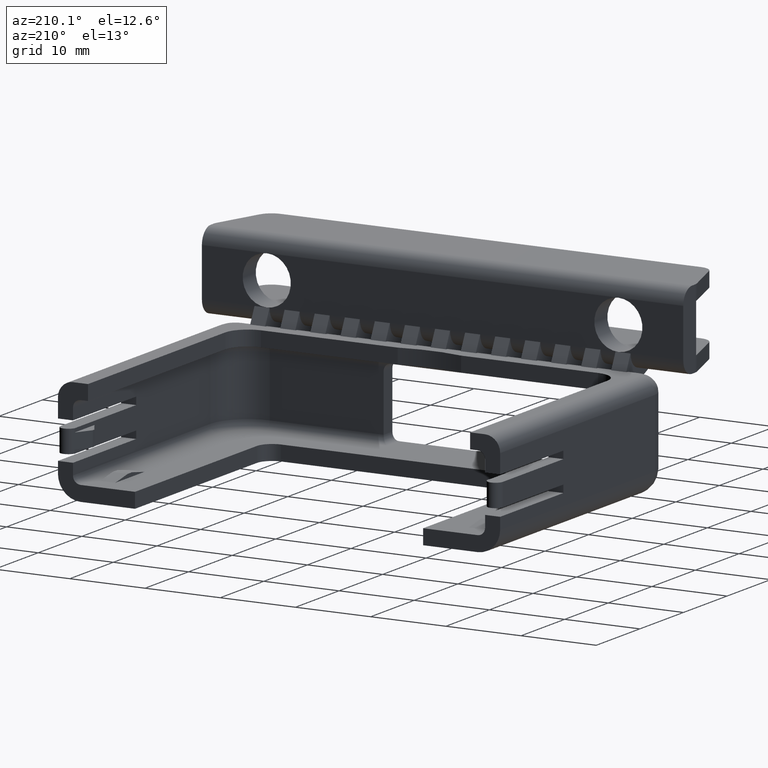
[diagram: clean part render]
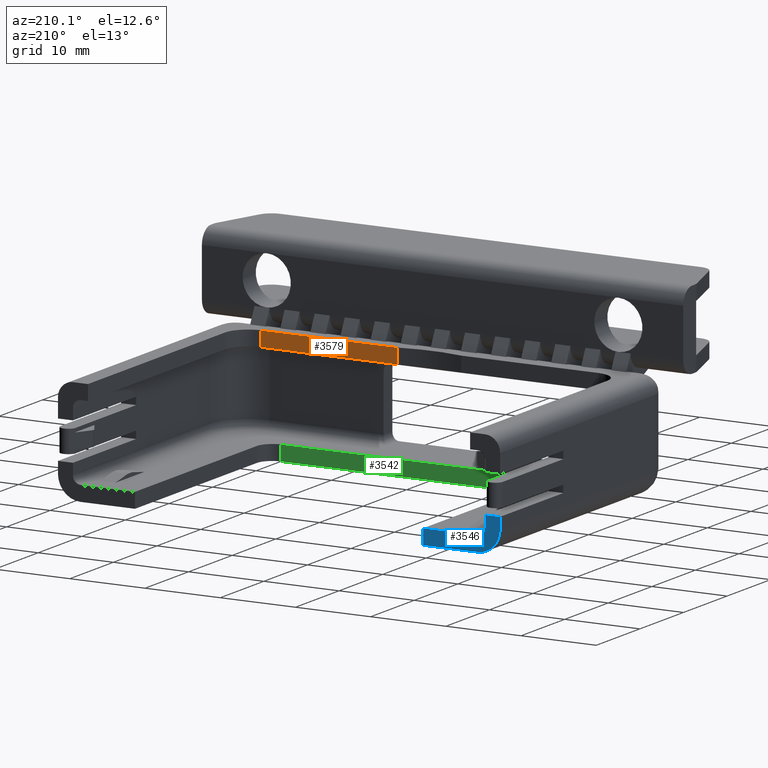
[diagram: same view with three faces highlighted in distinct colors, each labeled with its STEP entity id]
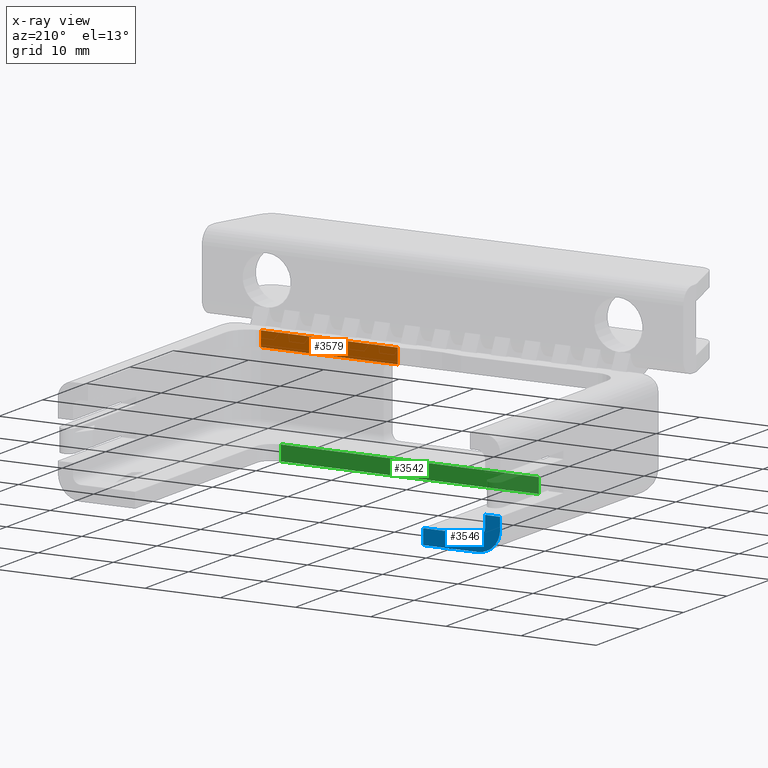
[diagram: x-ray of the same camera — body ghosted, the three highlighted faces saturated]
A machine part, auxiliary view with three faces highlighted in distinct colors.
The next image is the same camera in x-ray (body ghosted, the three faces saturated) — at least one of them is partly hidden behind the body in this view.
Their STEP definitions:

[orange] entity #3579 — the highlighted planar face has unit normal (0, 1, 0).
#679=VERTEX_POINT('',#4945);
#680=VERTEX_POINT('',#4947);
#762=VERTEX_POINT('',#5542);
#766=VERTEX_POINT('',#5555);
#1003=VECTOR('',#4104,1.);
#1078=VECTOR('',#4310,1.);
#1080=VECTOR('',#4315,1.);
#1086=VECTOR('',#4330,1.);
#1318=LINE('',#4946,#1003);
#1393=LINE('',#5541,#1078);
#1395=LINE('',#5547,#1080);
#1401=LINE('',#5564,#1086);
#1645=EDGE_CURVE('',#680,#679,#1318,.T.);
#1773=EDGE_CURVE('',#762,#680,#1393,.T.);
#1780=EDGE_CURVE('',#762,#766,#1395,.T.);
#1785=EDGE_CURVE('',#766,#679,#1401,.T.);
#2447=ORIENTED_EDGE('',*,*,#1773,.T.);
#2448=ORIENTED_EDGE('',*,*,#1645,.T.);
#2449=ORIENTED_EDGE('',*,*,#1785,.F.);
#2450=ORIENTED_EDGE('',*,*,#1780,.F.);
#3189=EDGE_LOOP('',(#2447,#2448,#2449,#2450));
#3385=FACE_BOUND('',#3189,.T.);
#3579=ADVANCED_FACE('',(#3385),#6182,.T.);
#3813=AXIS2_PLACEMENT_3D('',#5546,#4314,$);
#4104=DIRECTION('',(1.,0.,0.));
#4310=DIRECTION('',(0.,0.,1.));
#4314=DIRECTION('',(0.,1.,0.));
#4315=DIRECTION('',(1.,0.,0.));
#4330=DIRECTION('',(0.,0.,1.));
#4945=CARTESIAN_POINT('',(2.24,-1.525,1.4));
#4946=CARTESIAN_POINT('',(-2.24,-1.525,1.4));
#4947=CARTESIAN_POINT('',(0.421307488658818,-1.525,1.4));
#5541=CARTESIAN_POINT('',(0.421307488658818,-1.525,1.3));
#5542=CARTESIAN_POINT('',(0.421307488658818,-1.525,1.2));
#5546=CARTESIAN_POINT('',(0.,-1.525,1.2));
#5547=CARTESIAN_POINT('',(-2.24,-1.525,1.2));
#5555=CARTESIAN_POINT('',(2.24,-1.525,1.2));
#5564=CARTESIAN_POINT('',(2.24,-1.525,1.2));
#6182=PLANE('',#3813);

[blue] entity #3546 — the highlighted planar face has unit normal (0, 1, 0).
#485=CIRCLE('',#3762,0.3);
#486=CIRCLE('',#3763,0.1);
#703=VERTEX_POINT('',#5104);
#704=VERTEX_POINT('',#5105);
#723=VERTEX_POINT('',#5400);
#724=VERTEX_POINT('',#5403);
#725=VERTEX_POINT('',#5405);
#726=VERTEX_POINT('',#5406);
#727=VERTEX_POINT('',#5408);
#728=VERTEX_POINT('',#5409);
#998=VECTOR('',#4096,1.);
#1000=VECTOR('',#4098,1.);
#1014=VECTOR('',#4133,1.);
#1036=VECTOR('',#4179,1.);
#1037=VECTOR('',#4180,1.);
#1038=VECTOR('',#4183,1.);
#1313=LINE('',#4934,#998);
#1315=LINE('',#4938,#1000);
#1329=LINE('',#5093,#1014);
#1351=LINE('',#5401,#1036);
#1352=LINE('',#5402,#1037);
#1353=LINE('',#5407,#1038);
#1671=EDGE_CURVE('',#704,#703,#1329,.T.);
#1700=EDGE_CURVE('',#703,#723,#1351,.T.);
#1701=EDGE_CURVE('',#723,#724,#1352,.T.);
#1702=EDGE_CURVE('',#725,#724,#485,.T.);
#1703=EDGE_CURVE('',#725,#726,#1315,.T.);
#1704=EDGE_CURVE('',#726,#727,#1353,.T.);
#1705=EDGE_CURVE('',#727,#728,#1313,.T.);
#1706=EDGE_CURVE('',#704,#728,#486,.T.);
#2261=ORIENTED_EDGE('',*,*,#1700,.T.);
#2262=ORIENTED_EDGE('',*,*,#1701,.T.);
#2263=ORIENTED_EDGE('',*,*,#1702,.F.);
#2264=ORIENTED_EDGE('',*,*,#1703,.T.);
#2265=ORIENTED_EDGE('',*,*,#1704,.T.);
#2266=ORIENTED_EDGE('',*,*,#1705,.T.);
#2267=ORIENTED_EDGE('',*,*,#1706,.F.);
#2268=ORIENTED_EDGE('',*,*,#1671,.T.);
#3156=EDGE_LOOP('',(#2261,#2262,#2263,#2264,#2265,#2266,#2267,#2268));
#3352=FACE_BOUND('',#3156,.T.);
#3546=ADVANCED_FACE('',(#3352),#6166,.T.);
#3734=AXIS2_PLACEMENT_3D('',#4925,#4090,$);
#3762=AXIS2_PLACEMENT_3D('',#5404,#4181,#4182);
#3763=AXIS2_PLACEMENT_3D('',#5410,#4184,#4185);
#4090=DIRECTION('',(0.,1.,0.));
#4096=DIRECTION('',(0.,0.,-1.));
#4098=DIRECTION('',(0.,0.,1.));
#4133=DIRECTION('',(1.,0.,0.));
#4179=DIRECTION('',(0.,0.,-1.));
#4180=DIRECTION('',(-1.,0.,0.));
#4181=DIRECTION('',(0.,-1.,0.));
#4182=DIRECTION('',(-0.212132034355964,0.,-0.212132034355964));
#4183=DIRECTION('',(1.,0.,0.));
#4184=DIRECTION('',(0.,1.,0.));
#4185=DIRECTION('',(-0.0707106781186546,0.,-0.0707106781186549));
#4925=CARTESIAN_POINT('',(0.,1.925,0.));
#4934=CARTESIAN_POINT('',(-2.74,1.925,0.));
#4938=CARTESIAN_POINT('',(-2.94,1.925,0.));
#5093=CARTESIAN_POINT('',(2.43973143410106E-017,1.925,0.2));
#5104=CARTESIAN_POINT('',(-1.915,1.925,0.2));
#5105=CARTESIAN_POINT('',(-2.64,1.925,0.2));
#5400=CARTESIAN_POINT('',(-1.915,1.925,0.));
#5401=CARTESIAN_POINT('',(-1.915,1.925,3.62582981136404));
#5402=CARTESIAN_POINT('',(2.94,1.925,0.));
#5403=CARTESIAN_POINT('',(-2.64,1.925,0.));
#5404=CARTESIAN_POINT('',(-2.64,1.925,0.3));
#5405=CARTESIAN_POINT('',(-2.94,1.925,0.3));
#5406=CARTESIAN_POINT('',(-2.94,1.925,0.4496));
#5407=CARTESIAN_POINT('',(-1.47,1.925,0.4496));
#5408=CARTESIAN_POINT('',(-2.74,1.925,0.4496));
#5409=CARTESIAN_POINT('',(-2.74,1.925,0.3));
#5410=CARTESIAN_POINT('',(-2.64,1.925,0.3));
#6166=PLANE('',#3734);

[green] entity #3542 — the highlighted planar face has unit normal (0, -1, 0).
#700=VERTEX_POINT('',#5098);
#701=VERTEX_POINT('',#5100);
#718=VERTEX_POINT('',#5382);
#720=VERTEX_POINT('',#5388);
#1016=VECTOR('',#4137,1.);
#1028=VECTOR('',#4162,1.);
#1030=VECTOR('',#4167,1.);
#1031=VECTOR('',#4168,1.);
#1331=LINE('',#5099,#1016);
#1343=LINE('',#5381,#1028);
#1345=LINE('',#5387,#1030);
#1346=LINE('',#5389,#1031);
#1668=EDGE_CURVE('',#700,#701,#1331,.T.);
#1690=EDGE_CURVE('',#701,#718,#1343,.T.);
#1693=EDGE_CURVE('',#720,#700,#1345,.T.);
#1694=EDGE_CURVE('',#718,#720,#1346,.T.);
#2245=ORIENTED_EDGE('',*,*,#1690,.F.);
#2246=ORIENTED_EDGE('',*,*,#1668,.F.);
#2247=ORIENTED_EDGE('',*,*,#1693,.F.);
#2248=ORIENTED_EDGE('',*,*,#1694,.F.);
#3152=EDGE_LOOP('',(#2245,#2246,#2247,#2248));
#3348=FACE_BOUND('',#3152,.T.);
#3542=ADVANCED_FACE('',(#3348),#6171,.F.);
#3757=AXIS2_PLACEMENT_3D('',#5386,#4166,$);
#4137=DIRECTION('',(-1.,0.,0.));
#4162=DIRECTION('',(0.,0.,-1.));
#4166=DIRECTION('',(0.,-1.,0.));
#4167=DIRECTION('',(0.,0.,1.));
#4168=DIRECTION('',(1.,0.,0.));
#5098=CARTESIAN_POINT('',(1.715,-1.075,0.2));
#5099=CARTESIAN_POINT('',(2.43973143410106E-017,-1.075,0.2));
#5100=CARTESIAN_POINT('',(-1.715,-1.075,0.2));
#5381=CARTESIAN_POINT('',(-1.715,-1.075,7.25165962272808));
#5382=CARTESIAN_POINT('',(-1.715,-1.075,0.));
#5386=CARTESIAN_POINT('',(0.,-1.075,7.25165962272808));
#5387=CARTESIAN_POINT('',(1.715,-1.075,7.25165962272808));
#5388=CARTESIAN_POINT('',(1.715,-1.075,0.));
#5389=CARTESIAN_POINT('',(2.43973143410106E-017,-1.075,0.));
#6171=PLANE('',#3757);